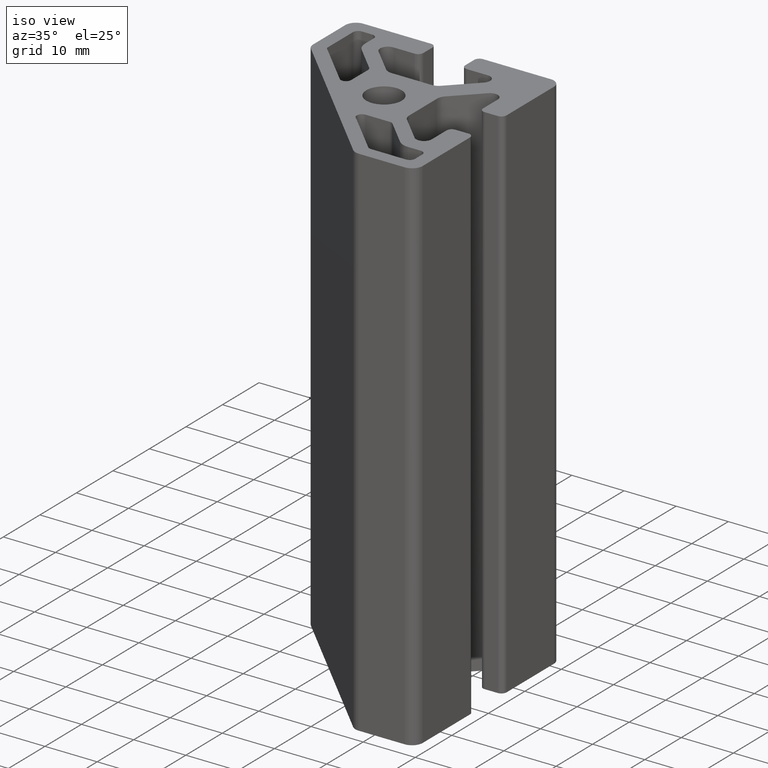
[diagram: clean part render]
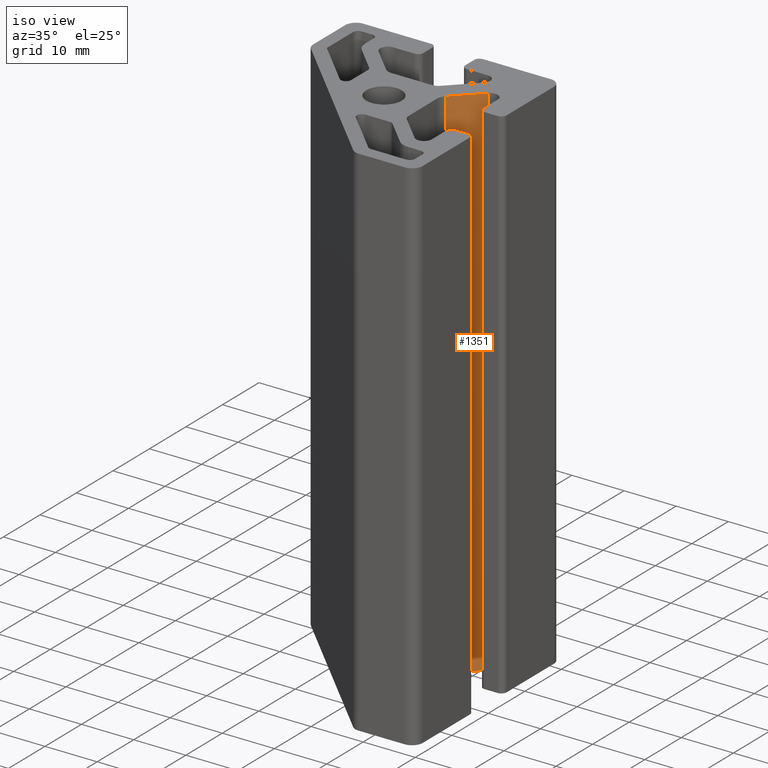
[diagram: same view with one face highlighted and labeled with its STEP entity id]
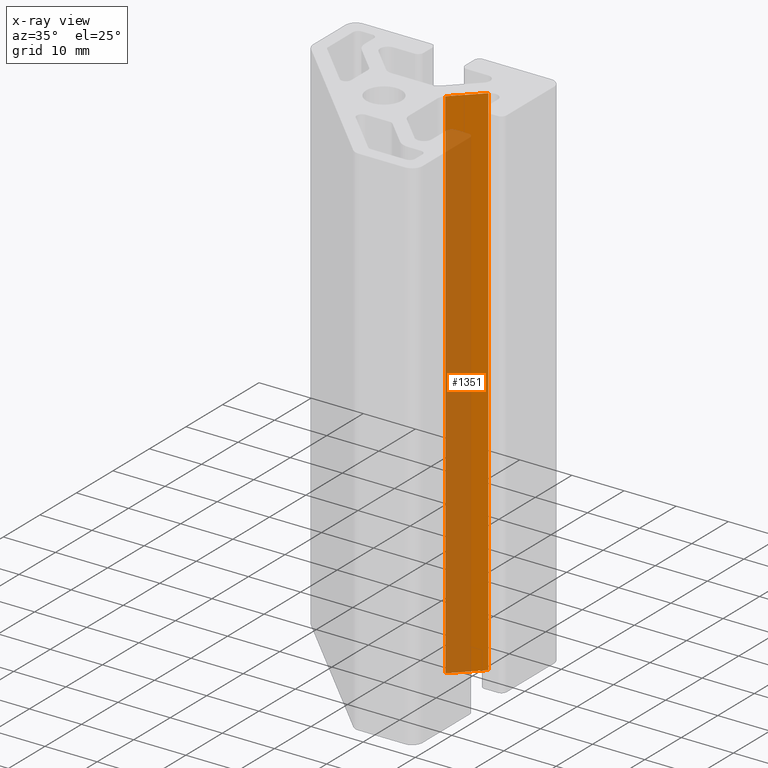
[diagram: x-ray of the same camera — body ghosted, the highlighted face saturated]
A machine part, iso view. The second image highlights one B-rep face of the part: STEP entity #1351.
The next image is the same camera in x-ray: the body ghosted, the highlighted face saturated — about 56% of this face is hidden behind the body in this view.
In plain terms, the highlighted planar face has unit normal (-0.7071, 0.7071, 0).
Its self-contained STEP definition (entity closure, byte-faithful):
#173=FACE_OUTER_BOUND('',#243,.T.);
#243=EDGE_LOOP('',(#1061,#1062,#1063,#1064));
#364=LINE('',#2217,#496);
#365=LINE('',#2220,#497);
#366=LINE('',#2222,#498);
#367=LINE('',#2223,#499);
#496=VECTOR('',#1809,100.);
#497=VECTOR('',#1812,6.86397516417903);
#498=VECTOR('',#1813,6.86397516417903);
#499=VECTOR('',#1814,100.);
#633=VERTEX_POINT('',#2213);
#634=VERTEX_POINT('',#2215);
#635=VERTEX_POINT('',#2219);
#636=VERTEX_POINT('',#2221);
#814=EDGE_CURVE('',#634,#633,#364,.T.);
#815=EDGE_CURVE('',#633,#635,#365,.T.);
#816=EDGE_CURVE('',#636,#634,#366,.T.);
#817=EDGE_CURVE('',#636,#635,#367,.T.);
#1061=ORIENTED_EDGE('',*,*,#815,.F.);
#1062=ORIENTED_EDGE('',*,*,#814,.F.);
#1063=ORIENTED_EDGE('',*,*,#816,.F.);
#1064=ORIENTED_EDGE('',*,*,#817,.T.);
#1290=PLANE('',#1474);
#1351=ADVANCED_FACE('',(#173),#1290,.F.);
#1474=AXIS2_PLACEMENT_3D('',#2218,#1810,#1811);
#1809=DIRECTION('',(0.,0.,1.));
#1810=DIRECTION('center_axis',(-0.707106781186547,0.707106781186548,0.));
#1811=DIRECTION('ref_axis',(-0.707106781186548,-0.707106781186547,0.));
#1812=DIRECTION('',(0.707106781186548,0.707106781186547,0.));
#1813=DIRECTION('',(-0.707106781186548,-0.707106781186547,0.));
#1814=DIRECTION('',(0.,0.,1.));
#2213=CARTESIAN_POINT('',(8.08578478815711,5.25735766341093,100.));
#2215=CARTESIAN_POINT('',(8.08578478815711,5.25735766341093,0.));
#2217=CARTESIAN_POINT('',(8.08578478815711,5.25735766341093,0.));
#2218=CARTESIAN_POINT('Origin',(12.9393481726442,10.110921047898,0.));
#2219=CARTESIAN_POINT('',(12.9393481726442,10.110921047898,100.));
#2220=CARTESIAN_POINT('',(7.17678086750862,4.34835374276244,100.));
#2221=CARTESIAN_POINT('',(12.9393481726442,10.110921047898,0.));
#2222=CARTESIAN_POINT('',(7.17678086750862,4.34835374276244,0.));
#2223=CARTESIAN_POINT('',(12.9393481726442,10.110921047898,0.));